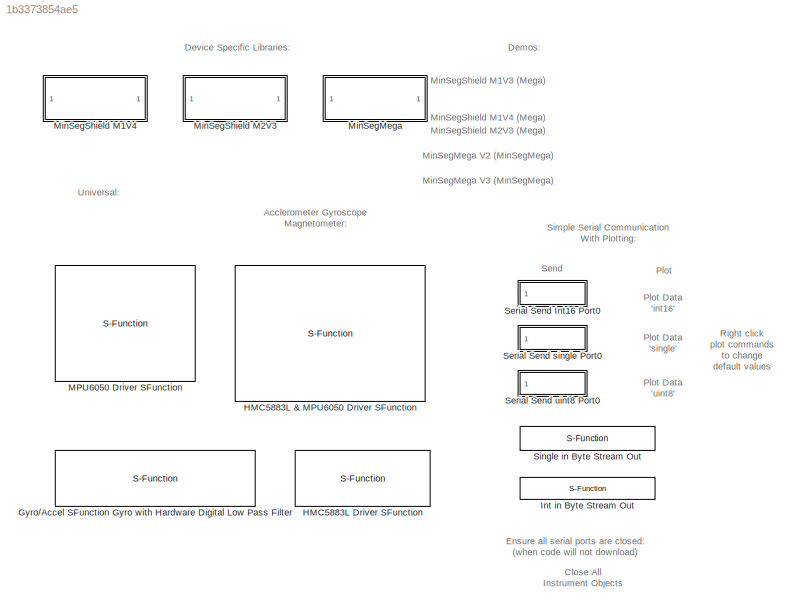
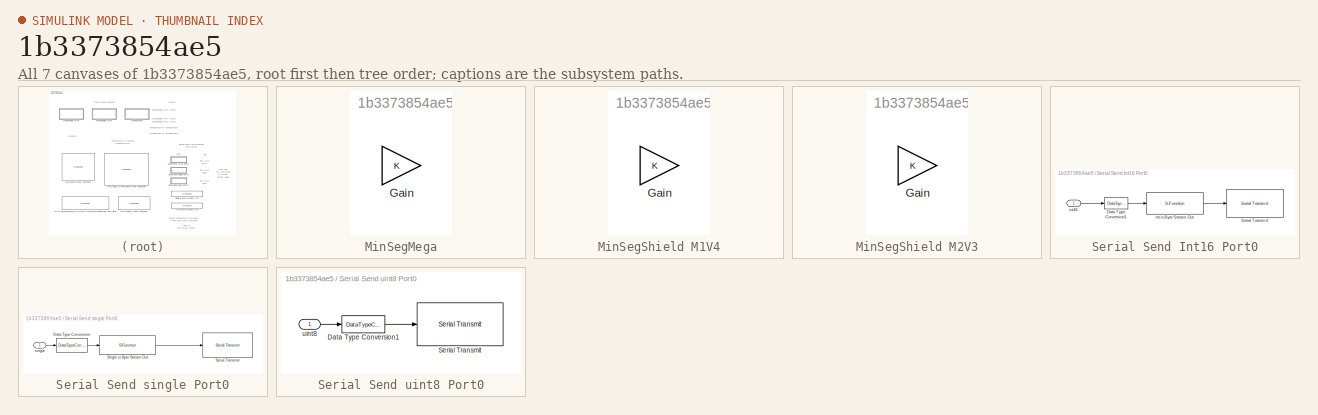
[diagram: thumbnail index - all 7 canvases of the model, root first then tree order]
MODEL slx_1b3373854ae5
KIND library
CONFIG AbsTol = auto
CONFIG FixedStep = auto
CONFIG MaxStep = auto
CONFIG MinStep = auto
CONFIG PostLoadFcn = setsysloc(bdroot)
CONFIG RelTol = 1e-3
CONFIG SampleTimeConstraint = Unconstrained
CONFIG Solver = ode45
CONFIG SolverMode = Auto
CONFIG SolverName = ode45
CONFIG StartFcn = open_system('MinSegLibrary','force')
CONFIG StartTime = 0.0
CONFIG StopTime = 10.0
BLOCK [S-Function] Gyro//Accel SFunction Gyro with Hardware Digital Low Pass Filter
  CopyFcn = set_param(gcbh,'LinkStatus','none')
  FunctionName = sf_MPU6050_Driver_GxAyz
  InitFcn = try, set_param(gcb,'FunctionName','sf_MPU6050_Driver_GxAyz'), end
  OpenFcn = sfunctionwizard(gcbh)
  Ports = [0, 3]
  PreSaveFcn = try, set_param(gcb,'FunctionName','sf_MPU6050_Driver_GxAyz'), end
  SFunctionModules = sf_MPU6050_Driver_GxAyz_wrapper
BLOCK [S-Function] HMC5883L & MPU6050 Driver SFunction
  CopyFcn = set_param(gcbh,'LinkStatus','none')
  FunctionName = sf_HMC5883L_MPU6050
  InitFcn = try, set_param(gcb,'FunctionName','sf_HMC5883L_MPU6050'), end
  OpenFcn = sfunctionwizard(gcbh)
  Ports = [0, 9]
  PreSaveFcn = try, set_param(gcb,'FunctionName','sf_HMC5883L_MPU6050'), end
  SFunctionModules = sf_HMC5883L_MPU6050_wrapper
BLOCK [S-Function] HMC5883L Driver SFunction
  CopyFcn = set_param(gcbh,'LinkStatus','none')
  FunctionName = sf_HMC5883L
  InitFcn = try, set_param(gcb,'FunctionName','sf_HMC5883L'), end
  OpenFcn = sfunctionwizard(gcbh)
  Ports = [0, 3]
  PreSaveFcn = try, set_param(gcb,'FunctionName','sf_HMC5883L'), end
  SFunctionModules = sf_HMC5883L_wrapper
BLOCK [S-Function] Int in Byte Stream Out
  CopyFcn = set_param(gcb,'LinkStatus','none')
  FunctionName = sf_int2bytes
  InitFcn = try, set_param(gcb,'FunctionName','sf_int2bytes'), end
  OpenFcn = sfunctionwizard(gcbh)
  Ports = [1, 1]
  PreSaveFcn = try, set_param(gcb,'FunctionName','sf_int2bytes'), end
  SFunctionModules = sf_int2bytes_wrapper
BLOCK [S-Function] MPU6050 Driver SFunction
  CopyFcn = set_param(gcbh,'LinkStatus','none')
  FunctionName = sf_MPU6050_Driver
  InitFcn = try, set_param(gcb,'FunctionName','sf_MPU6050_Driver'), end
  OpenFcn = sfunctionwizard(gcbh)
  Ports = [0, 6]
  PreSaveFcn = try, set_param(gcb,'FunctionName','sf_MPU6050_Driver'), end
  SFunctionModules = sf_MPU6050_Driver_wrapper
BLOCK [SubSystem] MinSegMega
  OpenFcn = MinSegLibrary_MinSegMega
  Ports = []
  RequestExecContextInheritance = off
BLOCK [Gain] MinSegMega/Gain
  OutDataTypeStr = Inherit: Inherit via internal rule
  ParamDataTypeStr = Inherit: Inherit via internal rule
  SaturateOnIntegerOverflow = off
BLOCK [SubSystem] MinSegShield M1V4
  OpenFcn = MinSegLibrary_M1V4
  Ports = []
  RequestExecContextInheritance = off
BLOCK [Gain] MinSegShield M1V4/Gain
  OutDataTypeStr = Inherit: Inherit via internal rule
  ParamDataTypeStr = Inherit: Inherit via internal rule
  SaturateOnIntegerOverflow = off
BLOCK [SubSystem] MinSegShield M2V3
  OpenFcn = MinSegLibrary_M2V3
  Ports = []
  RequestExecContextInheritance = off
BLOCK [Gain] MinSegShield M2V3/Gain
  OutDataTypeStr = Inherit: Inherit via internal rule
  ParamDataTypeStr = Inherit: Inherit via internal rule
  SaturateOnIntegerOverflow = off
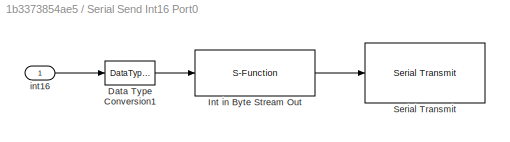
BLOCK [SubSystem] Serial Send Int16 Port0
  Ports = [1]
  RequestExecContextInheritance = off
BLOCK [DataTypeConversion] Serial Send Int16 Port0/Data Type Conversion1
  OutDataTypeStr = int16
  RndMeth = Floor
  SaturateOnIntegerOverflow = off
BLOCK [S-Function] Serial Send Int16 Port0/Int in Byte Stream Out
  CopyFcn = set_param(gcb,'LinkStatus','none')
  FunctionName = sf_int2bytes
  InitFcn = try, set_param(gcb,'FunctionName','sf_int2bytes'), end
  OpenFcn = sfunctionwizard(gcbh)
  Ports = [1, 1]
  PreSaveFcn = try, set_param(gcb,'FunctionName','sf_int2bytes'), end
  SFunctionModules = sf_int2bytes_wrapper
BLOCK [Reference] Serial Send Int16 Port0/Serial Transmit  REF=arduinolib/Serial Transmit
  Ports = [1]
  SourceBlock = arduinolib/Serial Transmit
  SourceType = Arduino Serial Transmit
  portNumber = 0
BLOCK [Inport] Serial Send Int16 Port0/int16
  IconDisplay = Port number
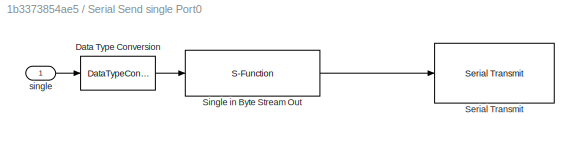
BLOCK [SubSystem] Serial Send single Port0
  Ports = [1]
  RequestExecContextInheritance = off
BLOCK [DataTypeConversion] Serial Send single Port0/Data Type Conversion
  OutDataTypeStr = single
  RndMeth = Floor
  SaturateOnIntegerOverflow = off
BLOCK [Reference] Serial Send single Port0/Serial Transmit  REF=arduinolib/Serial Transmit
  Ports = [1]
  SourceBlock = arduinolib/Serial Transmit
  SourceType = Arduino Serial Transmit
  portNumber = 0
BLOCK [S-Function] Serial Send single Port0/Single  in Byte Stream Out
  CopyFcn = set_param(gcb,'LinkStatus','none')
  FunctionName = sf_float2bytes
  InitFcn = try, set_param(gcb,'FunctionName','sf_float2bytes'), end
  OpenFcn = sfunctionwizard(gcbh)
  Ports = [1, 1]
  PreSaveFcn = try, set_param(gcb,'FunctionName','sf_float2bytes'), end
  SFunctionModules = sf_float2bytes_wrapper
BLOCK [Inport] Serial Send single Port0/single
  IconDisplay = Port number
BLOCK [SubSystem] Serial Send uint8 Port0
  Ports = [1]
  RequestExecContextInheritance = off
BLOCK [DataTypeConversion] Serial Send uint8 Port0/Data Type Conversion1
  OutDataTypeStr = uint8
  RndMeth = Floor
  SaturateOnIntegerOverflow = off
BLOCK [Reference] Serial Send uint8 Port0/Serial Transmit  REF=arduinolib/Serial Transmit
  Ports = [1]
  SourceBlock = arduinolib/Serial Transmit
  SourceType = Arduino Serial Transmit
  portNumber = 0
BLOCK [Inport] Serial Send uint8 Port0/uint8
  IconDisplay = Port number
BLOCK [S-Function] Single  in Byte Stream Out
  CopyFcn = set_param(gcb,'LinkStatus','none')
  FunctionName = sf_float2bytes
  InitFcn = try, set_param(gcb,'FunctionName','sf_float2bytes'), end
  OpenFcn = sfunctionwizard(gcbh)
  Ports = [1, 1]
  PreSaveFcn = try, set_param(gcb,'FunctionName','sf_float2bytes'), end
  SFunctionModules = sf_float2bytes_wrapper
ANNOTATION (root): Acclerometer Gyroscope Magnetometer:
ANNOTATION (root): Close All Instrument Objects
ANNOTATION (root): Demos:
ANNOTATION (root): Device Specific Libraries:
ANNOTATION (root): Ensure all serial ports are closed: (when code will not download)
ANNOTATION (root): MinSegMega V2 (MinSegMega)
ANNOTATION (root): MinSegMega V3 (MinSegMega)
ANNOTATION (root): MinSegShield M1V3 (Mega)
ANNOTATION (root): MinSegShield M1V4 (Mega)
ANNOTATION (root): MinSegShield M2V3 (Mega)
ANNOTATION (root): Plot
ANNOTATION (root): Plot Data 'int16'
ANNOTATION (root): Plot Data 'single'
ANNOTATION (root): Plot Data 'uint8'
ANNOTATION (root): Right click plot commands to change default values
ANNOTATION (root): Send
ANNOTATION (root): Simple Serial Communication With Plotting:
ANNOTATION (root): Universal:
LINE Serial Send Int16 Port0/Data Type Conversion1:1 -> Serial Send Int16 Port0/Int in Byte Stream Out:1
LINE Serial Send Int16 Port0/Int in Byte Stream Out:1 -> Serial Send Int16 Port0/Serial Transmit:1
LINE Serial Send Int16 Port0/int16:1 -> Serial Send Int16 Port0/Data Type Conversion1:1
LINE Serial Send single Port0/Data Type Conversion:1 -> Serial Send single Port0/Single  in Byte Stream Out:1
LINE Serial Send single Port0/Single  in Byte Stream Out:1 -> Serial Send single Port0/Serial Transmit:1
LINE Serial Send single Port0/single:1 -> Serial Send single Port0/Data Type Conversion:1
LINE Serial Send uint8 Port0/Data Type Conversion1:1 -> Serial Send uint8 Port0/Serial Transmit:1
LINE Serial Send uint8 Port0/uint8:1 -> Serial Send uint8 Port0/Data Type Conversion1:1
